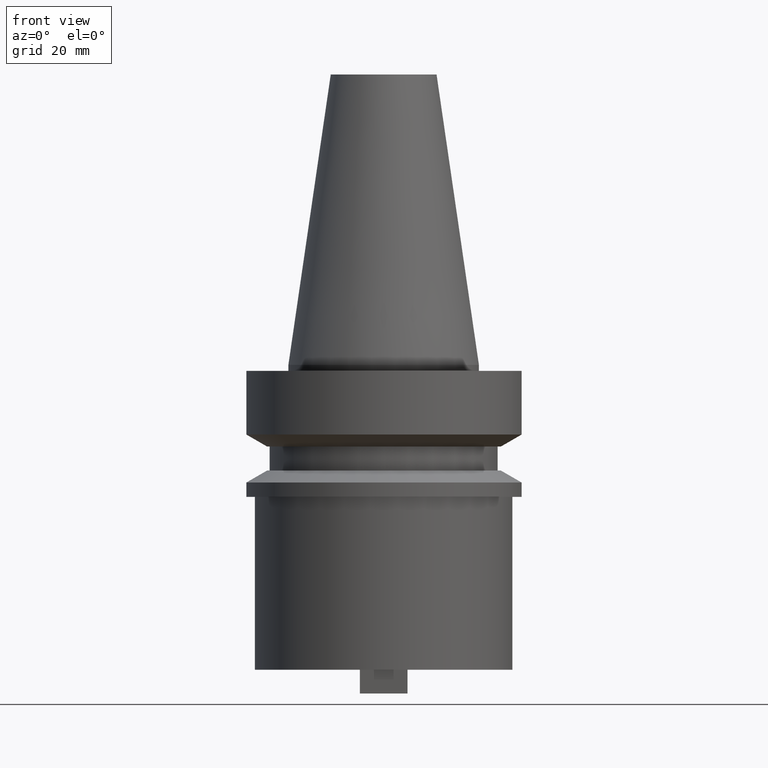
[diagram: clean part render]
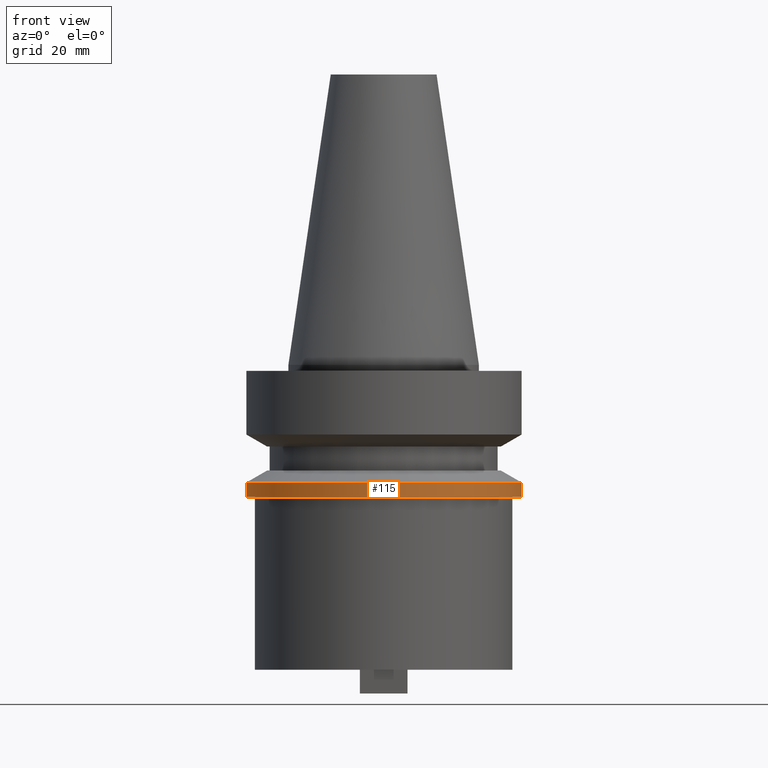
[diagram: same view with one face highlighted and labeled with its STEP entity id]
A machine part, front view. The second image highlights one B-rep face of the part: STEP entity #115.
In plain terms, the highlighted cylindrical surface (bore or boss wall) has radius 23 mm, axis along (-0, -0, 1).
Its self-contained STEP definition (entity closure, byte-faithful):
#46 = VERTEX_POINT ( 'NONE', #304 ) ;
#60 = ORIENTED_EDGE ( 'NONE', *, *, #186, .T. ) ;
#115 = ADVANCED_FACE ( 'NONE', ( #351, #132 ), #294, .T. ) ;
#132 = FACE_OUTER_BOUND ( 'NONE', #524, .T. ) ;
#169 = AXIS2_PLACEMENT_3D ( 'NONE', #598, #402, #601 ) ;
#170 = AXIS2_PLACEMENT_3D ( 'NONE', #530, #273, #369 ) ;
#179 = CIRCLE ( 'NONE', #170, 22.99999999999999645 ) ;
#186 = EDGE_CURVE ( 'NONE', #46, #46, #422, .T. ) ;
#240 = CARTESIAN_POINT ( 'NONE',  ( 0.000000000000000000, 0.000000000000000000, -21.99999999999999289 ) ) ;
#273 = DIRECTION ( 'NONE',  ( -0.000000000000000000, -0.000000000000000000, 1.000000000000000000 ) ) ;
#274 = ORIENTED_EDGE ( 'NONE', *, *, #474, .F. ) ;
#294 = CYLINDRICAL_SURFACE ( 'NONE', #169, 22.99999999999999289 ) ;
#298 = VERTEX_POINT ( 'NONE', #514 ) ;
#304 = CARTESIAN_POINT ( 'NONE',  ( 22.99999999999998934, 0.000000000000000000, -21.99999999999999289 ) ) ;
#345 = EDGE_LOOP ( 'NONE', ( #274 ) ) ;
#351 = FACE_OUTER_BOUND ( 'NONE', #345, .T. ) ;
#369 = DIRECTION ( 'NONE',  ( 1.000000000000000000, 0.000000000000000000, 0.000000000000000000 ) ) ;
#402 = DIRECTION ( 'NONE',  ( -0.000000000000000000, -0.000000000000000000, 1.000000000000000000 ) ) ;
#410 = AXIS2_PLACEMENT_3D ( 'NONE', #240, #449, #645 ) ;
#422 = CIRCLE ( 'NONE', #410, 22.99999999999998934 ) ;
#449 = DIRECTION ( 'NONE',  ( -0.000000000000000000, -0.000000000000000000, 1.000000000000000000 ) ) ;
#474 = EDGE_CURVE ( 'NONE', #298, #298, #179, .T. ) ;
#514 = CARTESIAN_POINT ( 'NONE',  ( 22.99999999999999645, 0.000000000000000000, -19.60014200631680836 ) ) ;
#524 = EDGE_LOOP ( 'NONE', ( #60 ) ) ;
#530 = CARTESIAN_POINT ( 'NONE',  ( 0.000000000000000000, 0.000000000000000000, -19.60014200631680836 ) ) ;
#598 = CARTESIAN_POINT ( 'NONE',  ( 0.000000000000000000, 0.000000000000000000, 48.39999999999998437 ) ) ;
#601 = DIRECTION ( 'NONE',  ( 1.000000000000000000, 0.000000000000000000, 0.000000000000000000 ) ) ;
#645 = DIRECTION ( 'NONE',  ( 1.000000000000000000, 0.000000000000000000, 0.000000000000000000 ) ) ;